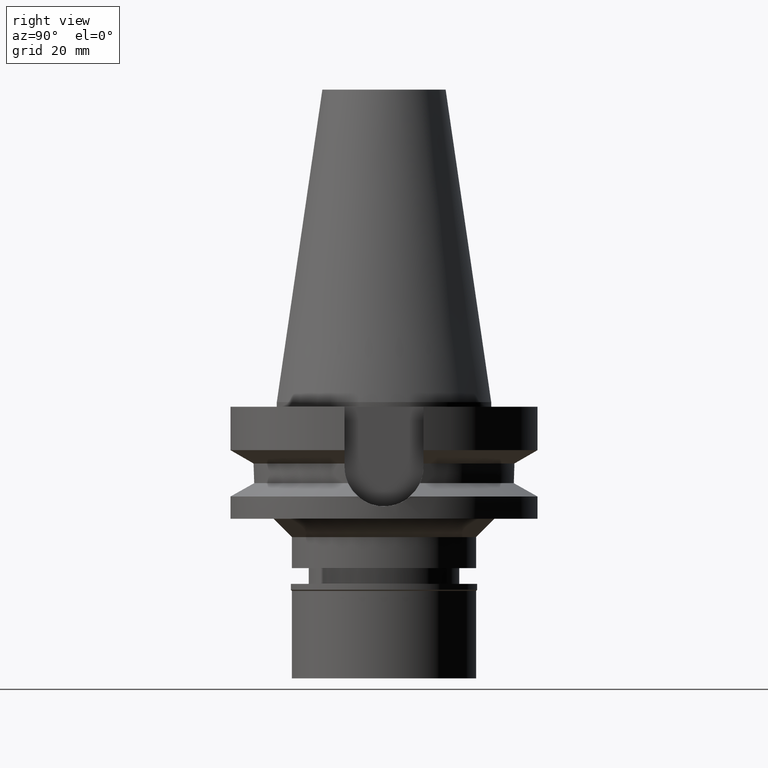
[diagram: clean part render]
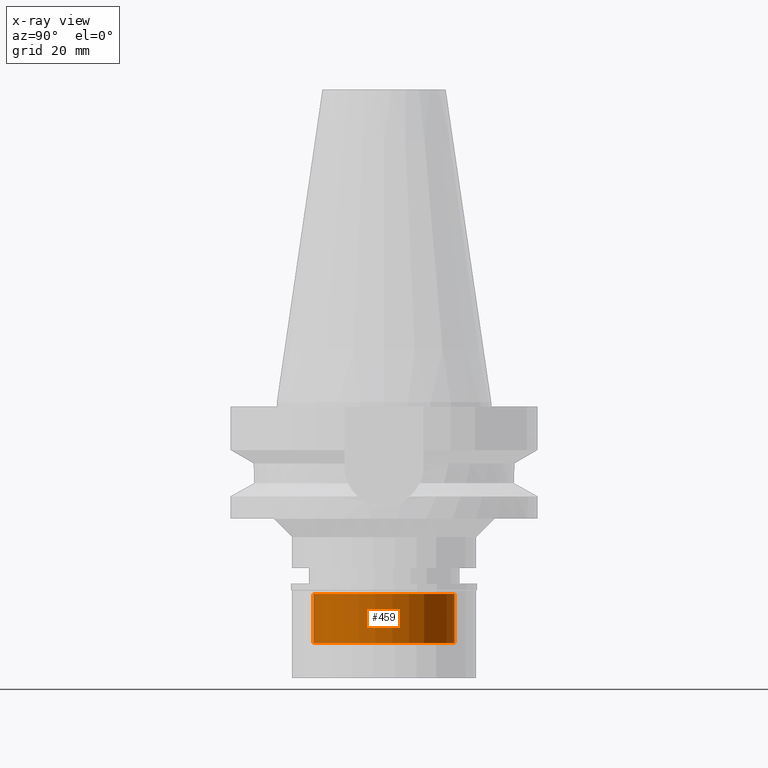
[diagram: x-ray — body ghosted, one internal face saturated and labeled with its STEP entity id]
A machine part, right view, then the same camera in x-ray: the body is ghosted and one INTERNAL B-rep face — a face not visible from any outside direction — is saturated and labeled: STEP entity #459.
In plain terms, the highlighted cylindrical surface (partial cylindrical patch) has radius 23 mm, axis along (0, 0, -1).
Its self-contained STEP definition (entity closure, byte-faithful):
#45 = ORIENTED_EDGE ( 'NONE', *, *, #2767, .T. ) ;
#171 = LINE ( 'NONE', #1097, #2930 ) ;
#198 = EDGE_CURVE ( 'NONE', #2330, #2239, #2494, .T. ) ;
#282 = EDGE_CURVE ( 'NONE', #1493, #2239, #171, .T. ) ;
#327 = DIRECTION ( 'NONE',  ( 0.0000000000000000000, -1.000000000000000000, 0.0000000000000000000 ) ) ;
#352 = CARTESIAN_POINT ( 'NONE',  ( 0.0000000000000000000, -23.00000000000000000, -78.50000000000000000 ) ) ;
#358 = DIRECTION ( 'NONE',  ( 0.0000000000000000000, 0.0000000000000000000, -1.000000000000000000 ) ) ;
#397 = EDGE_LOOP ( 'NONE', ( #1236, #45, #1384, #1764 ) ) ;
#459 = ADVANCED_FACE ( 'NONE', ( #1005 ), #2458, .T. ) ;
#492 = CARTESIAN_POINT ( 'NONE',  ( 0.0000000000000000000, -23.00000000000000000, -62.50000000000000000 ) ) ;
#809 = AXIS2_PLACEMENT_3D ( 'NONE', #905, #941, #2820 ) ;
#899 = CARTESIAN_POINT ( 'NONE',  ( 0.0000000000000000000, 23.00000000000000000, -62.50000000000000000 ) ) ;
#905 = CARTESIAN_POINT ( 'NONE',  ( 0.0000000000000000000, 2.581739149621999642E-14, -78.50000000000000000 ) ) ;
#941 = DIRECTION ( 'NONE',  ( 0.0000000000000000000, 0.0000000000000000000, 1.000000000000000000 ) ) ;
#997 = EDGE_CURVE ( 'NONE', #1493, #1226, #1301, .T. ) ;
#1005 = FACE_OUTER_BOUND ( 'NONE', #397, .T. ) ;
#1097 = CARTESIAN_POINT ( 'NONE',  ( 0.0000000000000000000, 23.00000000000000000, -62.50000000000000000 ) ) ;
#1226 = VERTEX_POINT ( 'NONE', #2006 ) ;
#1231 = LINE ( 'NONE', #492, #1572 ) ;
#1236 = ORIENTED_EDGE ( 'NONE', *, *, #997, .T. ) ;
#1252 = CARTESIAN_POINT ( 'NONE',  ( 0.0000000000000000000, 2.581739149621999642E-14, 110.8149999999999977 ) ) ;
#1301 = CIRCLE ( 'NONE', #1862, 23.00000000000000000 ) ;
#1384 = ORIENTED_EDGE ( 'NONE', *, *, #198, .T. ) ;
#1493 = VERTEX_POINT ( 'NONE', #899 ) ;
#1572 = VECTOR ( 'NONE', #1653, 1000.000000000000000 ) ;
#1653 = DIRECTION ( 'NONE',  ( 0.0000000000000000000, 0.0000000000000000000, -1.000000000000000000 ) ) ;
#1764 = ORIENTED_EDGE ( 'NONE', *, *, #282, .F. ) ;
#1778 = DIRECTION ( 'NONE',  ( 0.0000000000000000000, 1.000000000000000000, 0.0000000000000000000 ) ) ;
#1862 = AXIS2_PLACEMENT_3D ( 'NONE', #1880, #358, #1778 ) ;
#1880 = CARTESIAN_POINT ( 'NONE',  ( 0.0000000000000000000, 2.581739149621999642E-14, -62.50000000000000000 ) ) ;
#2006 = CARTESIAN_POINT ( 'NONE',  ( 0.0000000000000000000, -23.00000000000000000, -62.50000000000000000 ) ) ;
#2038 = AXIS2_PLACEMENT_3D ( 'NONE', #1252, #2704, #327 ) ;
#2239 = VERTEX_POINT ( 'NONE', #2618 ) ;
#2330 = VERTEX_POINT ( 'NONE', #352 ) ;
#2458 = CYLINDRICAL_SURFACE ( 'NONE', #2038, 23.00000000000000000 ) ;
#2494 = CIRCLE ( 'NONE', #809, 23.00000000000000000 ) ;
#2618 = CARTESIAN_POINT ( 'NONE',  ( 0.0000000000000000000, 23.00000000000000000, -78.50000000000000000 ) ) ;
#2704 = DIRECTION ( 'NONE',  ( 0.0000000000000000000, 0.0000000000000000000, -1.000000000000000000 ) ) ;
#2767 = EDGE_CURVE ( 'NONE', #1226, #2330, #1231, .T. ) ;
#2820 = DIRECTION ( 'NONE',  ( 0.0000000000000000000, -1.000000000000000000, 0.0000000000000000000 ) ) ;
#2930 = VECTOR ( 'NONE', #2978, 1000.000000000000000 ) ;
#2978 = DIRECTION ( 'NONE',  ( 0.0000000000000000000, 0.0000000000000000000, -1.000000000000000000 ) ) ;